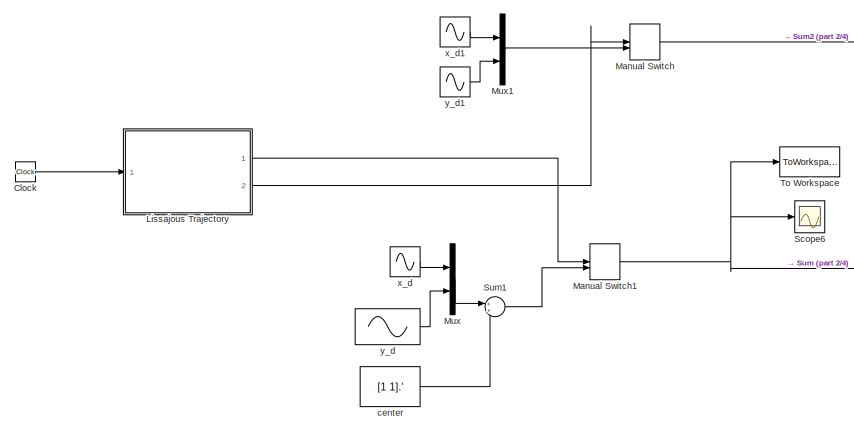
[diagram: root canvas - part 1/4, top left region]
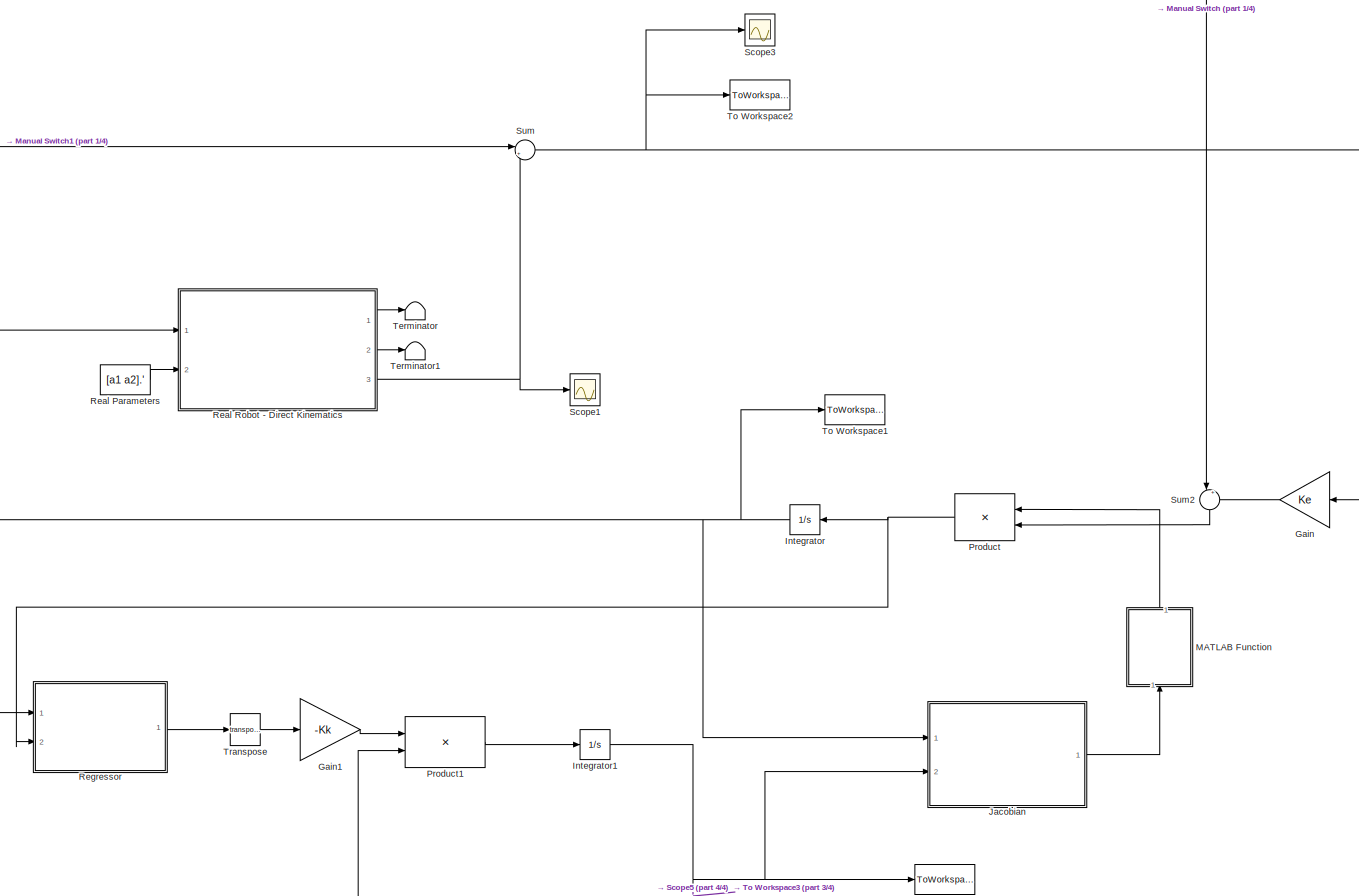
[diagram: root canvas - part 2/4, right side, full height]
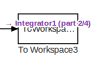
[diagram: root canvas - part 3/4, bottom right region]
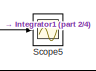
[diagram: root canvas - part 4/4, bottom right region]
MODEL slx_91f892b7c783
KIND model
CONFIG AbsTol = auto
CONFIG EnableMultiTasking = off
CONFIG FixedStep = 1e-1
CONFIG MaxStep = auto
CONFIG MinStep = auto
CONFIG RelTol = 1e-3
CONFIG SampleTimeConstraint = Unconstrained
CONFIG Solver = VariableStepAuto
CONFIG SolverName = VariableStepAuto
CONFIG StartTime = 0.0
CONFIG StopTime = 60
BLOCK [Clock] Clock
BLOCK [Gain] Gain
  Gain = Ke
  Multiplication = Matrix(K*u)
  OutDataTypeStr = Inherit: Inherit via internal rule
  ParamDataTypeStr = Inherit: Inherit via internal rule
  SaturateOnIntegerOverflow = off
BLOCK [Gain] Gain1
  Gain = -Kk
  Multiplication = Matrix(K*u)
  OutDataTypeStr = Inherit: Inherit via internal rule
  ParamDataTypeStr = Inherit: Inherit via internal rule
  SaturateOnIntegerOverflow = off
BLOCK [Integrator] Integrator
  InitialCondition = q_0
  Ports = [1, 1]
BLOCK [Integrator] Integrator1
  InitialCondition = int_a_err*[a1 a2].'
  Ports = [1, 1]
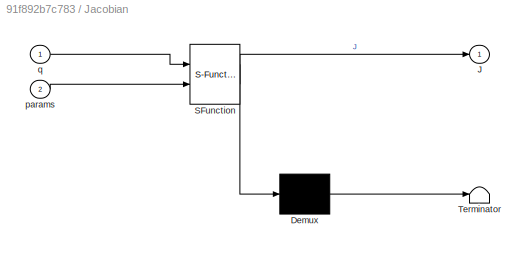
BLOCK [SubSystem] Jacobian 
  ErrorFcn = Stateflow.Translate.translate
  PermitHierarchicalResolution = ExplicitOnly
  Ports = [2, 1]
  RequestExecContextInheritance = off
  SFBlockType = MATLAB Function
  TreatAsAtomicUnit = on
BLOCK [Demux] Jacobian / Demux 
  Outputs = 1
  Ports = [1, 1]
BLOCK [S-Function] Jacobian / SFunction 
  EnableBusSupport = on
  FunctionName = sf_sfun
  PortCounts = [2 2]
  Ports = [2, 2]
  SFcnIsStateOwnerBlock = off
  SFunctionDeploymentMode = off
  Tag = Stateflow S-Function 1
BLOCK [Terminator] Jacobian / Terminator 
BLOCK [Outport] Jacobian /J
  IconDisplay = Port number
BLOCK [Inport] Jacobian /params
  IconDisplay = Port number
  Port = 2
BLOCK [Inport] Jacobian /q
  IconDisplay = Port number
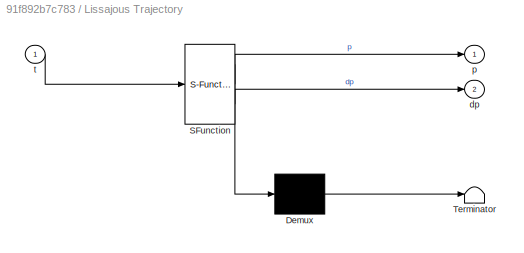
BLOCK [SubSystem] Lissajous Trajectory
  ErrorFcn = Stateflow.Translate.translate
  PermitHierarchicalResolution = ExplicitOnly
  Ports = [1, 2]
  RequestExecContextInheritance = off
  SFBlockType = MATLAB Function
  TreatAsAtomicUnit = on
BLOCK [Demux] Lissajous Trajectory/ Demux 
  Outputs = 1
  Ports = [1, 1]
BLOCK [S-Function] Lissajous Trajectory/ SFunction 
  EnableBusSupport = on
  FunctionName = sf_sfun
  PortCounts = [1 3]
  Ports = [1, 3]
  SFcnIsStateOwnerBlock = off
  SFunctionDeploymentMode = off
  Tag = Stateflow S-Function 5
BLOCK [Terminator] Lissajous Trajectory/ Terminator 
BLOCK [Outport] Lissajous Trajectory/dp
  IconDisplay = Port number
  Port = 2
BLOCK [Outport] Lissajous Trajectory/p
  IconDisplay = Port number
BLOCK [Inport] Lissajous Trajectory/t
  IconDisplay = Port number
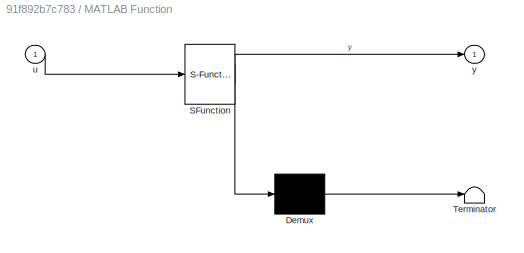
BLOCK [SubSystem] MATLAB Function
  ErrorFcn = Stateflow.Translate.translate
  PermitHierarchicalResolution = ExplicitOnly
  Ports = [1, 1]
  RequestExecContextInheritance = off
  SFBlockType = MATLAB Function
  TreatAsAtomicUnit = on
BLOCK [Demux] MATLAB Function/ Demux 
  Outputs = 1
  Ports = [1, 1]
BLOCK [S-Function] MATLAB Function/ SFunction 
  EnableBusSupport = on
  FunctionName = sf_sfun
  PortCounts = [1 2]
  Ports = [1, 2]
  SFcnIsStateOwnerBlock = off
  SFunctionDeploymentMode = off
  Tag = Stateflow S-Function 4
BLOCK [Terminator] MATLAB Function/ Terminator 
BLOCK [Inport] MATLAB Function/u
  IconDisplay = Port number
BLOCK [Outport] MATLAB Function/y
  IconDisplay = Port number
  VectorParamsAs1DForOutWhenUnconnected = off
BLOCK [ManualSwitch] Manual Switch
BLOCK [ManualSwitch] Manual Switch1
BLOCK [Mux] Mux
  DisplayOption = bar
  Inputs = 2
  Ports = [2, 1]
BLOCK [Mux] Mux1
  DisplayOption = bar
  Inputs = 2
  Ports = [2, 1]
BLOCK [Product] Product
  InputSameDT = off
  Multiplication = Matrix(*)
  OutDataTypeStr = Inherit: Inherit via internal rule
  Ports = [2, 1]
  RndMeth = Floor
  SaturateOnIntegerOverflow = off
BLOCK [Product] Product1
  InputSameDT = off
  Multiplication = Matrix(*)
  OutDataTypeStr = Inherit: Inherit via internal rule
  Ports = [2, 1]
  RndMeth = Floor
  SaturateOnIntegerOverflow = off
BLOCK [Constant] Real Parameters
  Value = [a1 a2].'
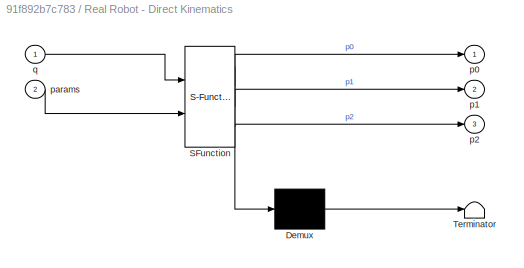
BLOCK [SubSystem] Real Robot - Direct Kinematics
  ErrorFcn = Stateflow.Translate.translate
  PermitHierarchicalResolution = ExplicitOnly
  Ports = [2, 3]
  RequestExecContextInheritance = off
  SFBlockType = MATLAB Function
  TreatAsAtomicUnit = on
BLOCK [Demux] Real Robot - Direct Kinematics/ Demux 
  Outputs = 1
  Ports = [1, 1]
BLOCK [S-Function] Real Robot - Direct Kinematics/ SFunction 
  EnableBusSupport = on
  FunctionName = sf_sfun
  PortCounts = [2 4]
  Ports = [2, 4]
  SFcnIsStateOwnerBlock = off
  SFunctionDeploymentMode = off
  Tag = Stateflow S-Function 2
BLOCK [Terminator] Real Robot - Direct Kinematics/ Terminator 
BLOCK [Outport] Real Robot - Direct Kinematics/p0
  IconDisplay = Port number
BLOCK [Outport] Real Robot - Direct Kinematics/p1
  IconDisplay = Port number
  Port = 2
BLOCK [Outport] Real Robot - Direct Kinematics/p2
  IconDisplay = Port number
  Port = 3
BLOCK [Inport] Real Robot - Direct Kinematics/params
  IconDisplay = Port number
  Port = 2
BLOCK [Inport] Real Robot - Direct Kinematics/q
  IconDisplay = Port number
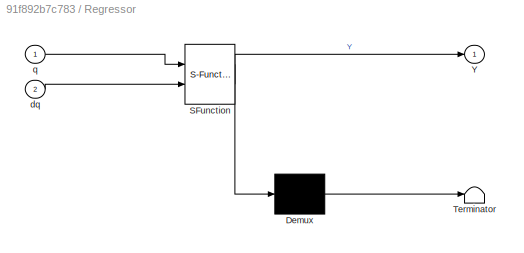
BLOCK [SubSystem] Regressor
  ErrorFcn = Stateflow.Translate.translate
  PermitHierarchicalResolution = ExplicitOnly
  Ports = [2, 1]
  RequestExecContextInheritance = off
  SFBlockType = MATLAB Function
  TreatAsAtomicUnit = on
BLOCK [Demux] Regressor/ Demux 
  Outputs = 1
  Ports = [1, 1]
BLOCK [S-Function] Regressor/ SFunction 
  EnableBusSupport = on
  FunctionName = sf_sfun
  PortCounts = [2 2]
  Ports = [2, 2]
  SFcnIsStateOwnerBlock = off
  SFunctionDeploymentMode = off
  Tag = Stateflow S-Function 3
BLOCK [Terminator] Regressor/ Terminator 
BLOCK [Outport] Regressor/Y
  IconDisplay = Port number
BLOCK [Inport] Regressor/dq
  IconDisplay = Port number
  Port = 2
BLOCK [Inport] Regressor/q
  IconDisplay = Port number
BLOCK [Scope] Scope1
  Floating = off
  NumInputPorts = 1
  Ports = [1]
  ScopeSpecificationString = Simulink.scopes.TimeScopeBlockCfg('CurrentConfiguration', extmgr.ConfigurationSet(extmgr.Configuration('Core','General UI',true),extmgr.Configuration('Core','Source UI',true),extmgr.Configuration('Sources','WiredSimulink',true,'DataLoggingVariableName','ScopeData1'),extmgr.Configuration('Visuals','Time Domain',true,'SerializedDisplays',{struct('MinYLimReal','-1.42476','MaxYLimReal','1.42453','YLab...<+1460ch>
BLOCK [Scope] Scope3
  Floating = off
  NumInputPorts = 1
  Ports = [1]
  ScopeSpecificationString = Simulink.scopes.TimeScopeBlockCfg('CurrentConfiguration', extmgr.ConfigurationSet(extmgr.Configuration('Core','General UI',true),extmgr.Configuration('Core','Source UI',true),extmgr.Configuration('Sources','WiredSimulink',true,'DataLoggingVariableName','ScopeData3'),extmgr.Configuration('Visuals','Time Domain',true,'SerializedDisplays',{struct('MinYLimReal','-1.26231','MaxYLimReal','0.99373','YLab...<+1402ch>
BLOCK [Scope] Scope5
  Floating = off
  NumInputPorts = 1
  Ports = [1]
  ScopeSpecificationString = Simulink.scopes.TimeScopeBlockCfg('CurrentConfiguration', extmgr.ConfigurationSet(extmgr.Configuration('Core','General UI',true),extmgr.Configuration('Core','Source UI',true),extmgr.Configuration('Sources','WiredSimulink',true,'DataLoggingVariableName','ScopeData5'),extmgr.Configuration('Visuals','Time Domain',true,'SerializedDisplays',{struct('MinYLimReal','0.59211','MaxYLimReal','4.39227','YLabe...<+1459ch>
BLOCK [Scope] Scope6
  Floating = off
  NumInputPorts = 1
  Ports = [1]
  ScopeSpecificationString = Simulink.scopes.TimeScopeBlockCfg('CurrentConfiguration', extmgr.ConfigurationSet(extmgr.Configuration('Core','General UI',true),extmgr.Configuration('Core','Source UI',true),extmgr.Configuration('Sources','WiredSimulink',true,'DataLoggingVariableName','ScopeData6'),extmgr.Configuration('Visuals','Time Domain',true,'SerializedDisplays',{struct('MinYLimReal','-0.1875','MaxYLimReal','1.6875','YLabel...<+1418ch>
BLOCK [Sum] Sum
  IconShape = round
  InputSameDT = off
  Inputs = |+-
  OutDataTypeStr = Inherit: Inherit via internal rule
  Ports = [2, 1]
  SaturateOnIntegerOverflow = off
BLOCK [Sum] Sum1
  IconShape = round
  InputSameDT = off
  OutDataTypeStr = Inherit: Inherit via internal rule
  Ports = [2, 1]
  SaturateOnIntegerOverflow = off
BLOCK [Sum] Sum2
  IconShape = round
  InputSameDT = off
  Inputs = |++
  OutDataTypeStr = Inherit: Inherit via internal rule
  Ports = [2, 1]
  SaturateOnIntegerOverflow = off
BLOCK [Terminator] Terminator
BLOCK [Terminator] Terminator1
BLOCK [ToWorkspace] To Workspace
  FixptAsFi = on
  MaxDataPoints = inf
  Ports = [1]
  SampleTime = -1
  SaveFormat = Timeseries
  VariableName = x_des
BLOCK [ToWorkspace] To Workspace1
  FixptAsFi = on
  MaxDataPoints = inf
  Ports = [1]
  SampleTime = -1
  SaveFormat = Timeseries
  VariableName = q_out
BLOCK [ToWorkspace] To Workspace2
  FixptAsFi = on
  MaxDataPoints = inf
  Ports = [1]
  SampleTime = -1
  SaveFormat = Timeseries
  VariableName = e_out
BLOCK [ToWorkspace] To Workspace3
  FixptAsFi = on
  MaxDataPoints = inf
  Ports = [1]
  SampleTime = -1
  SaveFormat = Timeseries
  VariableName = PI
BLOCK [Math] Transpose
  Operator = transpose
  Ports = [1, 1]
BLOCK [Constant] center
  Value = [1 1].'
BLOCK [Sin] x_d
  Amplitude = 0.25
  Ports = [0, 1]
  SampleTime = 0
BLOCK [Sin] x_d1
  Amplitude = 0.25
  Phase = pi/2
  Ports = [0, 1]
  SampleTime = 0
BLOCK [Sin] y_d
  Amplitude = 0.25
  Phase = pi/2
  Ports = [0, 1]
  SampleTime = 0
BLOCK [Sin] y_d1
  Amplitude = -0.25
  Ports = [0, 1]
  SampleTime = 0
LINE Clock:1 -> Lissajous Trajectory:1
LINE Gain1:1 -> Product1:1
LINE Gain:1 -> Sum2:2
NET Integrator1:1 -> Jacobian :2, Scope5:1, To Workspace3:1
NET Integrator:1 -> Jacobian :1, Real Robot - Direct Kinematics:1, Regressor:1, To Workspace1:1
LINE Jacobian :1 -> MATLAB Function:1
LINE Lissajous Trajectory:1 -> Manual Switch1:1
LINE Lissajous Trajectory:2 -> Manual Switch:1
LINE MATLAB Function:1 -> Product:1
NET Manual Switch1:1 -> Scope6:1, Sum:1, To Workspace:1
LINE Manual Switch:1 -> Sum2:1
LINE Mux1:1 -> Manual Switch:2
LINE Mux:1 -> Sum1:1
LINE Product1:1 -> Integrator1:1
NET Product:1 -> Integrator:1, Regressor:2
LINE Real Parameters:1 -> Real Robot - Direct Kinematics:2
LINE Real Robot - Direct Kinematics:1 -> Terminator:1
LINE Real Robot - Direct Kinematics:2 -> Terminator1:1
NET Real Robot - Direct Kinematics:3 -> Scope1:1, Sum:2
LINE Regressor:1 -> Transpose:1
LINE Sum1:1 -> Manual Switch1:2
LINE Sum2:1 -> Product:2
NET Sum:1 -> Gain:1, Product1:2, Scope3:1, To Workspace2:1
LINE Transpose:1 -> Gain1:1
LINE center:1 -> Sum1:2
LINE x_d1:1 -> Mux1:1
LINE x_d:1 -> Mux:1
LINE y_d1:1 -> Mux1:2
LINE y_d:1 -> Mux:2
note: NET lines group one-source signal fan-out (src -> all destinations, sorted); 1:1 wires keep LINE
CHART Jacobian
 states=1 transitions=1
  STATE_LABEL 'eML_blk_kernel()'
  STATE_LABEL 'SCRIPT:\nfunction J = J_fun( q , params)\n\nq1 = q(1);\nq2 = q(2);\n\na1 = params(1);\na2 = params(2);\n\nJ = [ - a2*sin(q1 + q2) - a1*sin(q1), -a2*sin(q1 + q2);\n      a2*cos(q1 + q2) + a1*cos(q1),  a2*cos(q1 + q2)];\n\nend'
CHART Real Robot - Direct Kinematics states=1 transitions=1
  STATE_LABEL 'eML_blk_kernel()'
  STATE_LABEL 'SCRIPT:\nfunction [p0, p1, p2] = direct_kinematics(q,params)\n\n    q1 = q(1);\n    q2 = q(2);\n\n    a1 = params(1);\n    a2 = params(2);\n\n    p0 = [0;0];\n    p1 = [a1*cos(q1); a1*sin(q1)];\n    p2 = p1 + [a2*cos(q1+q2); a2*sin(q1+q2)];\nend\n'
CHART Regressor states=1 transitions=1
  STATE_LABEL 'eML_blk_kernel()'
  STATE_LABEL 'SCRIPT:\nfunction Y = Y_fun( q , dq)\n\nq1 = q(1);\nq2 = q(2);\ndq1 = dq(1);\ndq2 = dq(2);\n\nY =  [ - dq1*sin(q1) , -dq1*sin(q1 + q2) - dq2*sin(q1 + q2);\n         dq1*cos(q1) , dq1*cos(q1 + q2) + dq2*cos(q1 + q2) ];\n\nend'
CHART MATLAB Function states=1 transitions=1
  STATE_LABEL 'eML_blk_kernel()'
  STATE_LABEL 'SCRIPT:\nfunction y = mat_inverse(u)\n\ny = inv(u);\n'
CHART Lissajous Trajectory states=1 transitions=1
  STATE_LABEL 'eML_blk_kernel()'
  STATE_LABEL 'SCRIPT:\nfunction [p, dp] = lissajous(t)\n\n% p0 = [1; 1];\n%Optimum parameters\n% A = 0.9093;\n% a = 1.8929;\n% d = 1.5494;\n% B = 1.1402;\n% b = 0.9379;\n\n%bad trajectory\nA = 1.5; B = 1;\na = -1; b = -1; d = pi;\n\np = [A*sin(a*t+d); B*sin(b*t)]; %+ p0;\ndp = [A*a*cos(a*t+d); B*b*cos(b*t)];\n'
